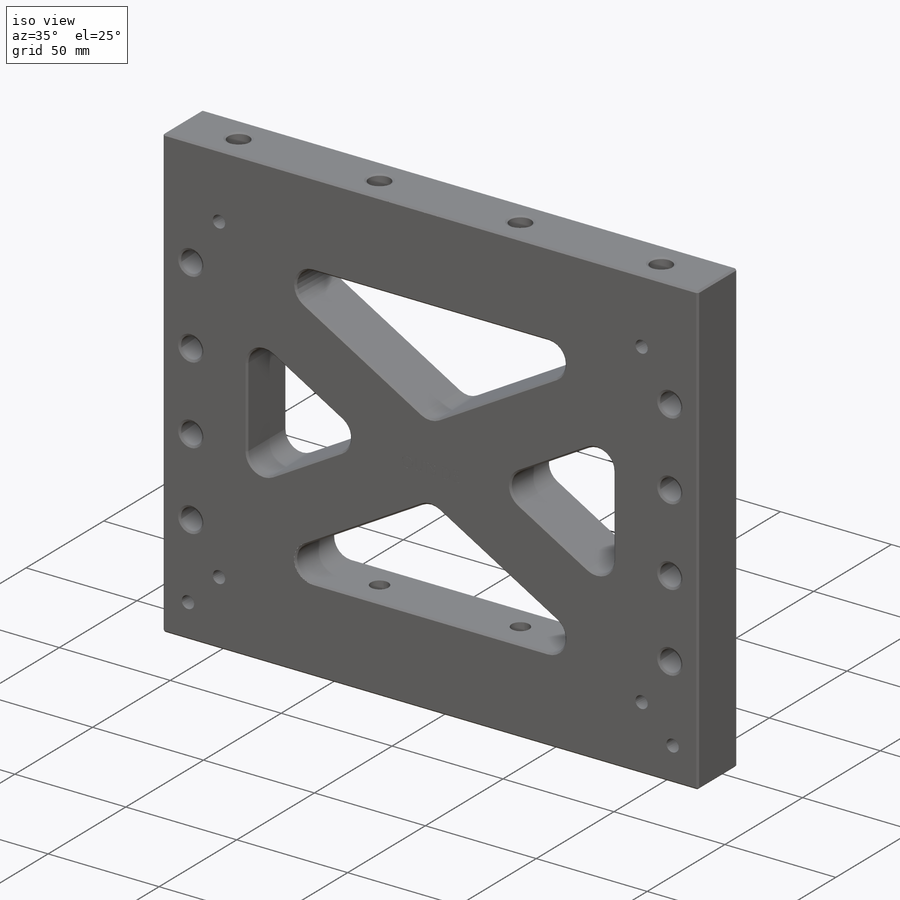
[diagram: iso view]
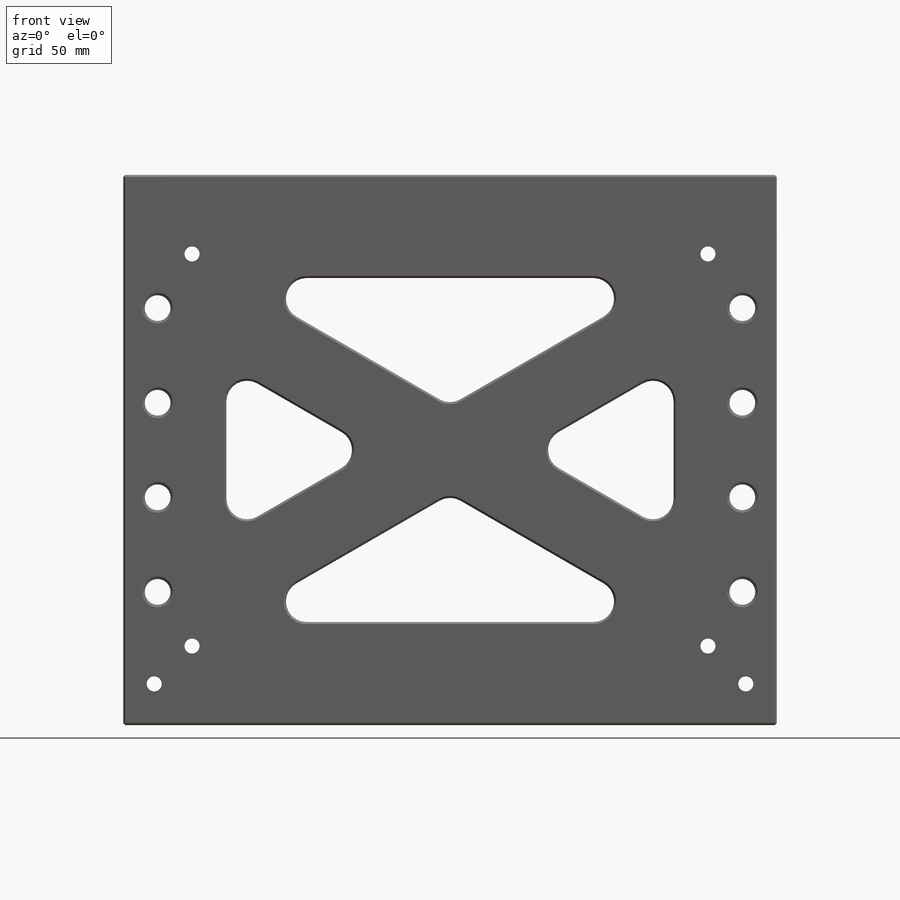
[diagram: front view]
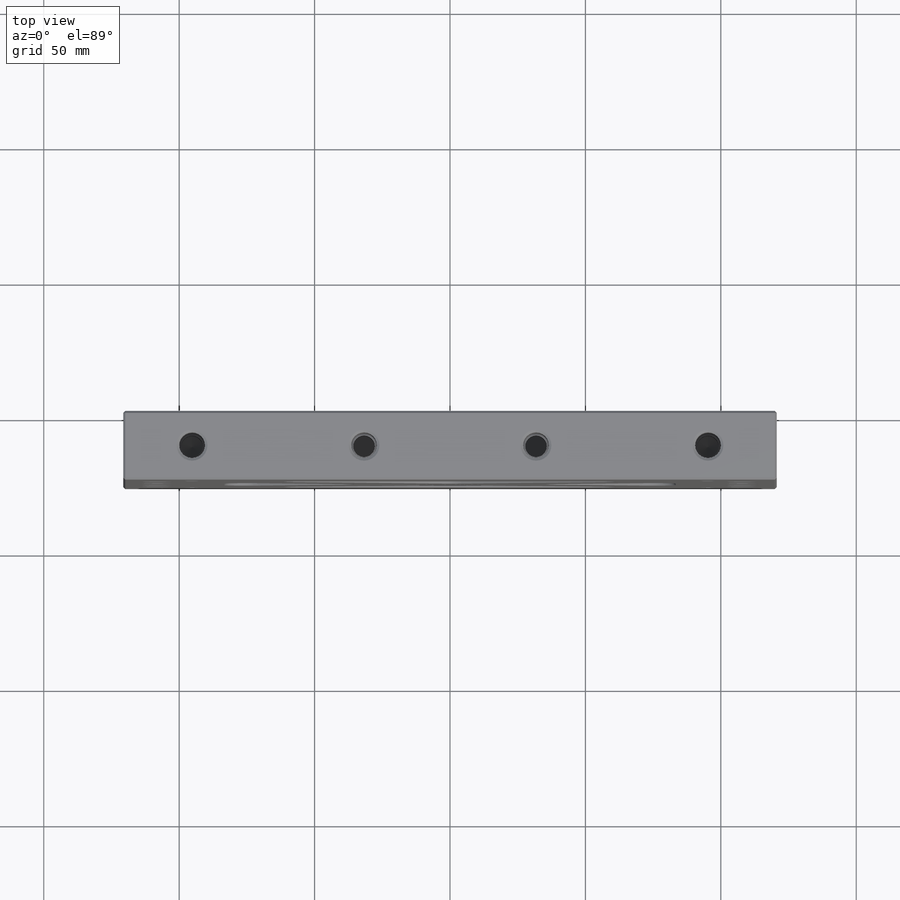
[diagram: top view]
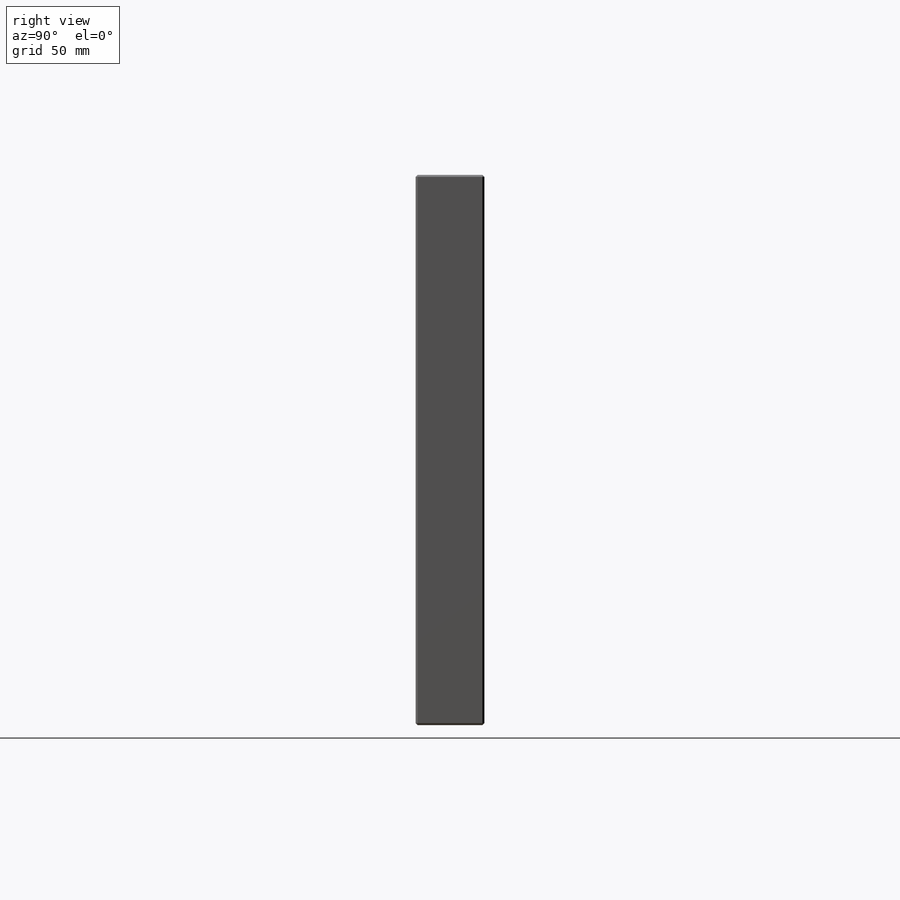
[diagram: right view]
SOLIDWORKS PART (.sldprt)
format: sldprt  version: not decoded by parser v0  size: 1,043,968 bytes
history: native  units: mm
features: sketch x28, cut_extrude x8, hole x8, extrude x4, chamfer x3, material x1, mirror x1, fillet x1 + 1 further entry (+15 scaffold rows collapsed; 2 parser-record rows omitted)
feature tree (72):
  scaffold x15  (default folders/planes/origin — collapsed)
  material  "6061-T6 Al"
  "Origin"  ID=-1
  sketch  "Sketch1"  dims[D1=241.3mm D2=203.2mm]
  extrude  "Extrude1"  Depth=25.4mm
  sketch  "Sketch2"  dims[D1=38.1mm D2=38.1mm]
  cut_extrude  "Extrude2"  [1 undecoded]
  sketch  "Sketch3"  dims[c1.D1=152.4mm c2.D1=30.0deg c2.D2=28.575mm c2.D3=101.6mm]
  extrude  "Extrude3"  [1 undecoded]
  mirror  "Mirror1"
  fillet  "Fillet1"  Radius=7.62mm
  chamfer  "Chamfer1"  Distance=0.762mm Angle=45deg
  chamfer  "Chamfer2"  Distance=0.762mm Angle=45deg
  hole  "3/8-16 Tapped Hole1"  Diameter=7.9375mm Depth=38.1mm
  sketch  "Sketch7"  dims[D1=63.5mm]
  sketch  "Sketch6"  dims[hole-wizard template sketch: 27 standard entries collapsed; hole parameters kept: c8.Tap Drill Depth=38.1mm c8.Thread Major Dia.=9.525mm c8.Thread Depth=25.4mm c8.Near C'Sink Dia.=11.43mm c8.D6=~4.399409mm c8.Near C'Sink Angle=120.0deg c8.D7=~14.816244mm c8.Drill Angle=118.0deg]
  hole  "3/8-16 Tapped Hole2"  Diameter=7.9375mm Depth=38.1mm
  sketch  "Sketch9"
  sketch  "Sketch8"  dims[hole-wizard template sketch: 27 standard entries collapsed; hole parameters kept: c8.Tap Drill Depth=38.1mm c8.Thread Major Dia.=9.525mm c8.Thread Depth=25.4mm c8.Near C'Sink Dia.=11.43mm c8.D6=~4.399409mm c8.Near C'Sink Angle=120.0deg c8.D7=~14.816244mm c8.Drill Angle=118.0deg]
  hole  "3/8-16 Tapped Hole3"  Diameter=7.9375mm Depth=38.1mm
  sketch  "Sketch11"
  sketch  "Sketch10"  dims[hole-wizard template sketch: 27 standard entries collapsed; hole parameters kept: c8.Tap Drill Depth=38.1mm c8.Thread Major Dia.=9.525mm c8.Thread Depth=25.4mm c8.Near C'Sink Dia.=11.43mm c8.D6=~4.399409mm c8.Near C'Sink Angle=120.0deg c8.D7=~14.816244mm c8.Drill Angle=118.0deg]
  hole  "3/8-16 Tapped Hole4"  Diameter=7.9375mm Depth=38.1mm
  sketch  "Sketch13"
  sketch  "Sketch12"  dims[hole-wizard template sketch: 27 standard entries collapsed; hole parameters kept: c8.Tap Drill Depth=38.1mm c8.Thread Major Dia.=9.525mm c8.Thread Depth=25.4mm c8.Near C'Sink Dia.=11.43mm c8.D6=~4.399409mm c8.Near C'Sink Angle=120.0deg c8.D7=~14.816244mm c8.Drill Angle=118.0deg]
  hole  "7/32 (0.21875) Vent Hole1"  Diameter=5.55625mm Depth=25.4mm
  sketch  "Sketch5"  dims[D1=63.5mm D2=29.21mm]
  sketch  "Sketch4"  dims[hole-wizard template sketch: 61 standard entries collapsed; hole parameters above]
  hole  "3/8-16 Tapped Hole5"  Diameter=9.525mm Depth=25.4mm
  sketch  "Sketch15"  dims[D1=12.7mm D2=34.925mm D3=12.7mm]
  sketch  "Sketch14"  dims[hole-wizard template sketch: 46 standard entries collapsed; hole parameters kept: c15.Thread Major Dia.=9.525mm c15.Thru Tap Drill Depth=25.4mm c15.Near C'Sink Dia.=11.43mm c15.D4=~3.666174mm c15.Near C'Sink Angle=120.0deg c15.Far C'Sink Dia.=11.43mm c15.D6=~9.919017mm c15.Far C'Sink Angle=120.0deg]
  parser-record x2  (decoder bookkeeping rows leaked as tree rows — omitted from the tree; the rows remain in map.json)
  sketch  "Sketch16"  dims[D1=0.0mm]
  cut_extrude  "Extrude4"  Depth=0.0254mm
  sketch  "Sketch17"  dims[D1=25.4mm D2=38.1mm]
  extrude  "Extrude5"  Depth=0.0254mm
  sketch  "Sketch19"  dims[D1=0.0mm]
  cut_extrude  "Extrude7"  Depth=0.0254mm
  sketch  "Sketch18"  dims[D1=38.1mm D2=25.4mm]
  extrude  "Extrude6"  Depth=0.0254mm
  sketch  "Sketch20"  dims[D1=3.81mm]
  cut_extrude  "Extrude8"  [1 undecoded]
  sketch  "Sketch21"  dims[D1=3.81mm]
  cut_extrude  "Extrude9"  [1 undecoded]
  sketch  "Sketch22"
  cut_extrude  "Extrude10"  [1 undecoded]
  hole  "3/8 (0.375) Diameter Hole2"  Diameter=9.54278mm Depth=19.05mm
  sketch  "Sketch32"  dims[D1=13.97mm]
  sketch  "Sketch31"  dims[hole-wizard template sketch: 46 standard entries collapsed; hole parameters above]
  sketch  "Sketch33"  dims[D1=1.524mm]
  cut_extrude  "Extrude14"  Depth=19.05mm
  chamfer  "Chamfer4"  Distance=2.286mm Angle=45deg
  hole  "7/32 (0.21875) Diameter Hole3"  Diameter=5.55625mm Depth=25.4mm
  sketch  "Sketch35"  dims[D1=15.24mm D2=11.43mm D3=11.43mm]
  sketch  "Sketch34"  dims[hole-wizard template sketch: 61 standard entries collapsed; hole parameters above]
  sketch  "Sketch36"
  cut_extrude  "Extrude15"  Depth=0.0254mm
decode coverage: 42 of 53 modeling features carry decoded parameters; 1 rows unclassified (native names shown)
note: ~ marks probable driven/reference dimensions
note: 5 parameter values undecoded
summary: Diameter pulled from absorbed wizard sketch | no parameter record found for 5 features
note: suppression state not decoded; provenance and decode notes live in map.json
